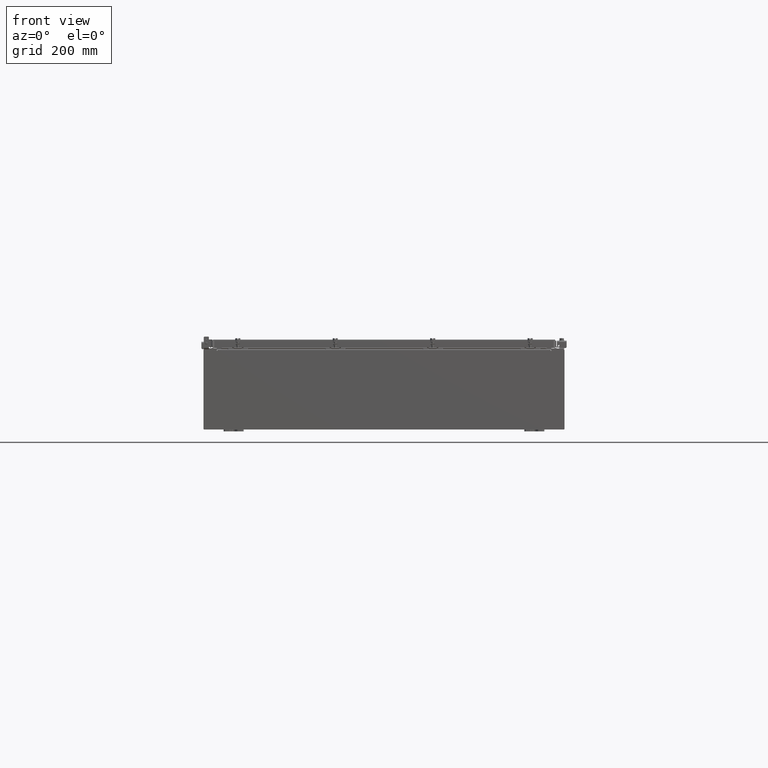
[diagram: clean part render]
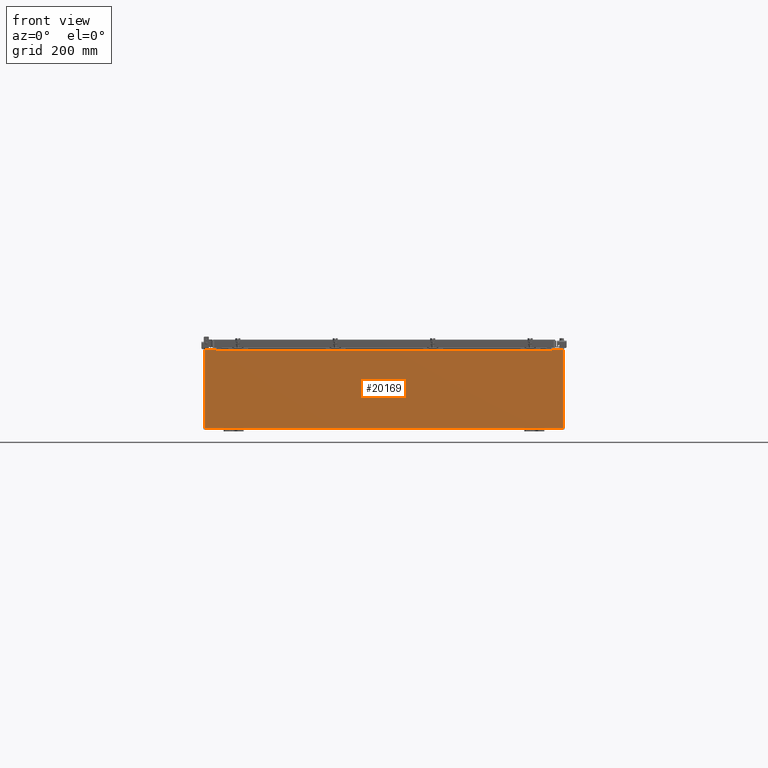
[diagram: same view with one face highlighted and labeled with its STEP entity id]
A machine part, front view. The second image highlights one B-rep face of the part: STEP entity #20169.
In plain terms, the highlighted planar face has unit normal (-0, 1, -0).
Its self-contained STEP definition (entity closure, byte-faithful):
#309 = CARTESIAN_POINT ( 'NONE',  ( 16.63720000000000700, 0.0000000000000000000, 3.912300000000000100 ) ) ;
#344 = CARTESIAN_POINT ( 'NONE',  ( -16.63719999999999600, 3.756290991288361700E-016, 3.912300000000000100 ) ) ;
#726 = DIRECTION ( 'NONE',  ( 0.0000000000000000000, 0.0000000000000000000, 1.000000000000000000 ) ) ;
#909 = LINE ( 'NONE', #3469, #8651 ) ;
#1160 = VERTEX_POINT ( 'NONE', #344 ) ;
#1237 = DIRECTION ( 'NONE',  ( 0.0000000000000000000, 0.0000000000000000000, -1.000000000000000000 ) ) ;
#1342 = LINE ( 'NONE', #19269, #19639 ) ;
#1486 = ORIENTED_EDGE ( 'NONE', *, *, #10230, .T. ) ;
#1729 = VERTEX_POINT ( 'NONE', #20252 ) ;
#1912 = CARTESIAN_POINT ( 'NONE',  ( 17.92530000000000400, 0.0000000000000000000, 3.925300000000000500 ) ) ;
#2008 = VECTOR ( 'NONE', #5876, 39.37007874015748100 ) ;
#2237 = CARTESIAN_POINT ( 'NONE',  ( 16.65587500000000500, 0.0000000000000000000, 3.874950000000000100 ) ) ;
#2443 = VERTEX_POINT ( 'NONE', #11027 ) ;
#2509 = CARTESIAN_POINT ( 'NONE',  ( -17.92529999999999600, 0.0000000000000000000, 3.925300000000000500 ) ) ;
#2607 = DIRECTION ( 'NONE',  ( 0.0000000000000000000, -1.000000000000000000, 0.0000000000000000000 ) ) ;
#2805 = EDGE_CURVE ( 'NONE', #1729, #13637, #1342, .T. ) ;
#3469 = CARTESIAN_POINT ( 'NONE',  ( -17.92529999999999600, 0.0000000000000000000, -3.925299999999999100 ) ) ;
#3874 = CARTESIAN_POINT ( 'NONE',  ( -16.65587499999999800, 0.0000000000000000000, 3.874950000000000100 ) ) ;
#4336 = DIRECTION ( 'NONE',  ( 0.0000000000000000000, 0.0000000000000000000, -1.000000000000000000 ) ) ;
#4616 = PLANE ( 'NONE',  #13769 ) ;
#4821 = CARTESIAN_POINT ( 'NONE',  ( -16.67454999999999600, 0.0000000000000000000, 3.925300000000000500 ) ) ;
#5591 = ORIENTED_EDGE ( 'NONE', *, *, #16056, .T. ) ;
#5793 = ORIENTED_EDGE ( 'NONE', *, *, #17546, .F. ) ;
#5796 = EDGE_LOOP ( 'NONE', ( #23180, #14526, #5793, #5591, #16196, #25738, #23676, #15296, #14489, #1486, #27563, #15184 ) ) ;
#5876 = DIRECTION ( 'NONE',  ( 0.0000000000000000000, 0.0000000000000000000, 1.000000000000000000 ) ) ;
#5889 = VERTEX_POINT ( 'NONE', #22435 ) ;
#5990 = DIRECTION ( 'NONE',  ( 0.0000000000000000000, 0.0000000000000000000, -1.000000000000000000 ) ) ;
#6116 = CARTESIAN_POINT ( 'NONE',  ( -16.63719999999999600, -0.0000000000000000000, 3.874950000000000100 ) ) ;
#6191 = VECTOR ( 'NONE', #25908, 39.37007874015748100 ) ;
#7613 = LINE ( 'NONE', #11342, #18270 ) ;
#7664 = LINE ( 'NONE', #10218, #2008 ) ;
#7670 = VECTOR ( 'NONE', #8197, 39.37007874015748100 ) ;
#7753 = VECTOR ( 'NONE', #17662, 39.37007874015748100 ) ;
#8197 = DIRECTION ( 'NONE',  ( -0.0000000000000000000, -0.0000000000000000000, 1.000000000000000000 ) ) ;
#8238 = CIRCLE ( 'NONE', #27160, 0.01867499999999949400 ) ;
#8651 = VECTOR ( 'NONE', #9812, 39.37007874015748100 ) ;
#9148 = CARTESIAN_POINT ( 'NONE',  ( 16.67454999999967000, -0.0000000000000000000, -1.447541957108349400E-012 ) ) ;
#9223 = VERTEX_POINT ( 'NONE', #23434 ) ;
#9575 = VECTOR ( 'NONE', #14679, 39.37007874015748100 ) ;
#9678 = CARTESIAN_POINT ( 'NONE',  ( 16.63720000000000700, 0.0000000000000000000, 3.874950000000000100 ) ) ;
#9812 = DIRECTION ( 'NONE',  ( -1.000000000000000000, -0.0000000000000000000, -0.0000000000000000000 ) ) ;
#9943 = LINE ( 'NONE', #9148, #26273 ) ;
#10218 = CARTESIAN_POINT ( 'NONE',  ( -16.67454999999999600, -0.0000000000000000000, 0.0000000000000000000 ) ) ;
#10230 = EDGE_CURVE ( 'NONE', #9223, #22789, #909, .T. ) ;
#10362 = CARTESIAN_POINT ( 'NONE',  ( 17.92530000000000400, 0.0000000000000000000, 3.925300000000000500 ) ) ;
#11027 = CARTESIAN_POINT ( 'NONE',  ( 16.67455000000000700, 0.0000000000000000000, 3.874950000000000100 ) ) ;
#11270 = CARTESIAN_POINT ( 'NONE',  ( -16.63719999999999600, 3.756290991288361700E-016, 3.912300000000000100 ) ) ;
#11301 = DIRECTION ( 'NONE',  ( -8.681145560800009800E-014, 0.0000000000000000000, -1.000000000000000000 ) ) ;
#11342 = CARTESIAN_POINT ( 'NONE',  ( 16.63720000000000700, 0.0000000000000000000, 0.0000000000000000000 ) ) ;
#11688 = LINE ( 'NONE', #20303, #16646 ) ;
#12144 = EDGE_CURVE ( 'NONE', #13343, #9223, #20923, .T. ) ;
#12163 = VERTEX_POINT ( 'NONE', #6116 ) ;
#12238 = EDGE_CURVE ( 'NONE', #2443, #14323, #8238, .T. ) ;
#12327 = EDGE_CURVE ( 'NONE', #5889, #13343, #12571, .T. ) ;
#12571 = LINE ( 'NONE', #2509, #6191 ) ;
#13013 = VERTEX_POINT ( 'NONE', #15190 ) ;
#13343 = VERTEX_POINT ( 'NONE', #1912 ) ;
#13382 = LINE ( 'NONE', #11270, #7753 ) ;
#13637 = VERTEX_POINT ( 'NONE', #4821 ) ;
#13769 = AXIS2_PLACEMENT_3D ( 'NONE', #21716, #2607, #17483 ) ;
#14323 = VERTEX_POINT ( 'NONE', #9678 ) ;
#14481 = EDGE_CURVE ( 'NONE', #12163, #13013, #27511, .T. ) ;
#14489 = ORIENTED_EDGE ( 'NONE', *, *, #12144, .T. ) ;
#14526 = ORIENTED_EDGE ( 'NONE', *, *, #14481, .F. ) ;
#14679 = DIRECTION ( 'NONE',  ( 0.0000000000000000000, 0.0000000000000000000, -1.000000000000000000 ) ) ;
#15184 = ORIENTED_EDGE ( 'NONE', *, *, #2805, .T. ) ;
#15190 = CARTESIAN_POINT ( 'NONE',  ( -16.67454999999999600, 0.0000000000000000000, 3.874950000000000100 ) ) ;
#15296 = ORIENTED_EDGE ( 'NONE', *, *, #12327, .T. ) ;
#16056 = EDGE_CURVE ( 'NONE', #1160, #19144, #13382, .T. ) ;
#16196 = ORIENTED_EDGE ( 'NONE', *, *, #18050, .F. ) ;
#16646 = VECTOR ( 'NONE', #1237, 39.37007874015748100 ) ;
#17109 = DIRECTION ( 'NONE',  ( -0.0000000000000000000, 1.000000000000000000, -0.0000000000000000000 ) ) ;
#17237 = AXIS2_PLACEMENT_3D ( 'NONE', #3874, #18809, #5990 ) ;
#17388 = CARTESIAN_POINT ( 'NONE',  ( -17.92529999999999600, 0.0000000000000000000, -3.925299999999999100 ) ) ;
#17483 = DIRECTION ( 'NONE',  ( 0.0000000000000000000, -0.0000000000000000000, -1.000000000000000000 ) ) ;
#17546 = EDGE_CURVE ( 'NONE', #1160, #12163, #11688, .T. ) ;
#17662 = DIRECTION ( 'NONE',  ( 1.000000000000000000, 0.0000000000000000000, 0.0000000000000000000 ) ) ;
#17720 = EDGE_CURVE ( 'NONE', #22789, #1729, #18325, .T. ) ;
#18050 = EDGE_CURVE ( 'NONE', #14323, #19144, #7613, .T. ) ;
#18270 = VECTOR ( 'NONE', #726, 39.37007874015748100 ) ;
#18325 = LINE ( 'NONE', #20973, #7670 ) ;
#18809 = DIRECTION ( 'NONE',  ( -0.0000000000000000000, 1.000000000000000000, -0.0000000000000000000 ) ) ;
#19144 = VERTEX_POINT ( 'NONE', #309 ) ;
#19269 = CARTESIAN_POINT ( 'NONE',  ( -17.92529999999999600, 0.0000000000000000000, 3.925300000000000500 ) ) ;
#19377 = DIRECTION ( 'NONE',  ( 1.000000000000000000, 0.0000000000000000000, 0.0000000000000000000 ) ) ;
#19466 = EDGE_CURVE ( 'NONE', #5889, #2443, #9943, .T. ) ;
#19639 = VECTOR ( 'NONE', #19377, 39.37007874015748100 ) ;
#20169 = ADVANCED_FACE ( 'NONE', ( #24938 ), #4616, .F. ) ;
#20252 = CARTESIAN_POINT ( 'NONE',  ( -17.92529999999999600, 0.0000000000000000000, 3.925300000000000500 ) ) ;
#20303 = CARTESIAN_POINT ( 'NONE',  ( -16.63719999999999600, -0.0000000000000000000, 0.0000000000000000000 ) ) ;
#20923 = LINE ( 'NONE', #10362, #9575 ) ;
#20973 = CARTESIAN_POINT ( 'NONE',  ( -17.92529999999999600, 0.0000000000000000000, 3.925300000000000500 ) ) ;
#21716 = CARTESIAN_POINT ( 'NONE',  ( 0.0000000000000000000, 0.0000000000000000000, 0.0000000000000000000 ) ) ;
#22435 = CARTESIAN_POINT ( 'NONE',  ( 16.67455000000001100, 0.0000000000000000000, 3.925300000000000500 ) ) ;
#22789 = VERTEX_POINT ( 'NONE', #17388 ) ;
#23180 = ORIENTED_EDGE ( 'NONE', *, *, #27098, .F. ) ;
#23434 = CARTESIAN_POINT ( 'NONE',  ( 17.92530000000000400, 0.0000000000000000000, -3.925299999999999100 ) ) ;
#23676 = ORIENTED_EDGE ( 'NONE', *, *, #19466, .F. ) ;
#24938 = FACE_OUTER_BOUND ( 'NONE', #5796, .T. ) ;
#25738 = ORIENTED_EDGE ( 'NONE', *, *, #12238, .F. ) ;
#25908 = DIRECTION ( 'NONE',  ( 1.000000000000000000, 0.0000000000000000000, 0.0000000000000000000 ) ) ;
#26273 = VECTOR ( 'NONE', #11301, 39.37007874015748100 ) ;
#27098 = EDGE_CURVE ( 'NONE', #13013, #13637, #7664, .T. ) ;
#27160 = AXIS2_PLACEMENT_3D ( 'NONE', #2237, #17109, #4336 ) ;
#27511 = CIRCLE ( 'NONE', #17237, 0.01867499999999949400 ) ;
#27563 = ORIENTED_EDGE ( 'NONE', *, *, #17720, .T. ) ;